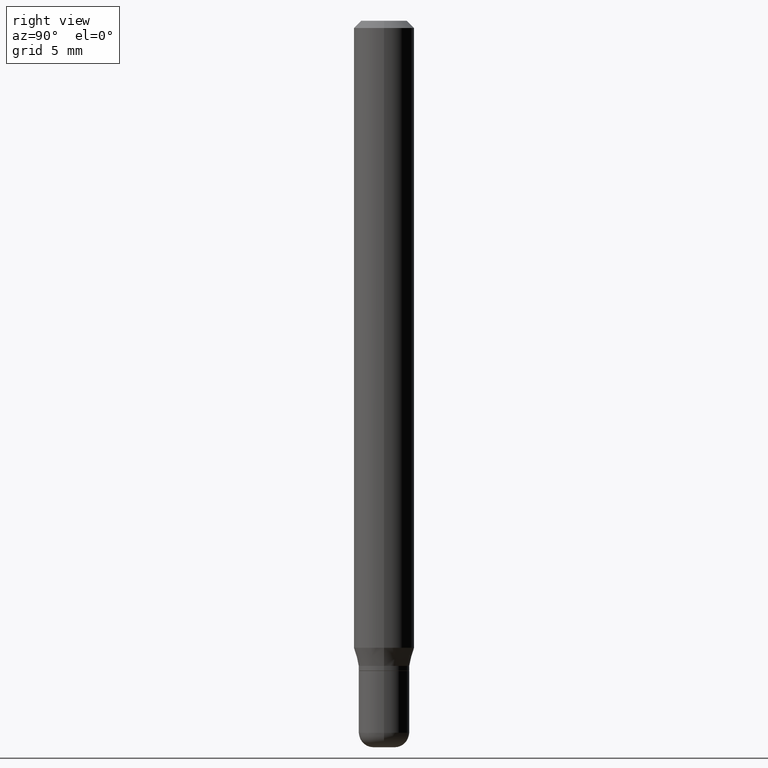
[diagram: clean part render]
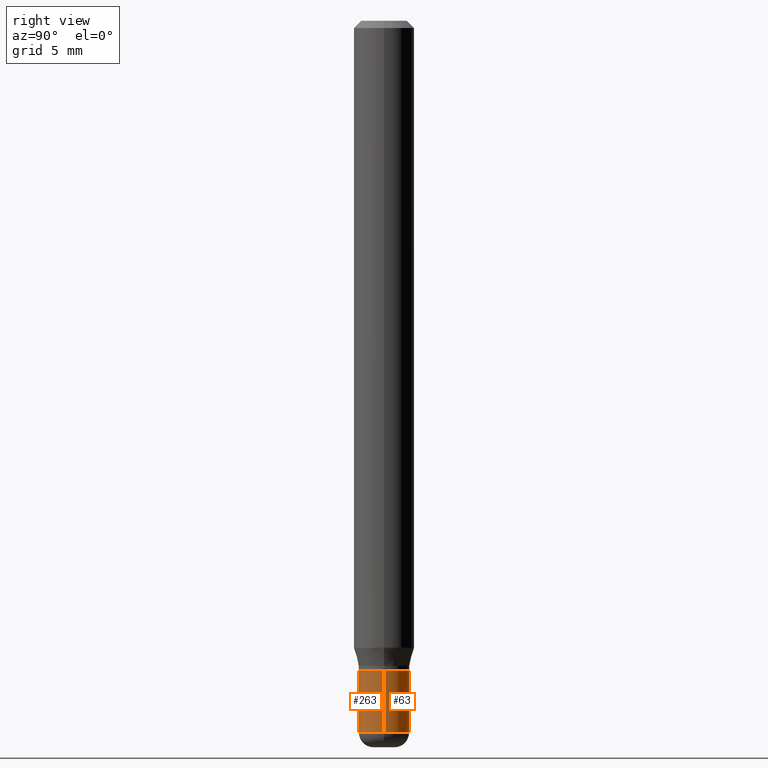
[diagram: same view with one multi-face feature highlighted, each face labeled with its STEP entity id]
A machine part, right view. The highlighted faces form ONE feature: a constant-radius fillet chain: 2 tangent blend faces with common blend radius 1.3335 mm. The faces share edges in the B-rep.
Their STEP definitions:
[1] entity #263 (Cylinder):
#3 = VERTEX_POINT ( 'NONE', #451 ) ;
#45 = EDGE_CURVE ( 'NONE', #3, #133, #436, .T. ) ;
#78 = AXIS2_PLACEMENT_3D ( 'NONE', #101, #333, #320 ) ;
#85 = DIRECTION ( 'NONE',  ( -2.445468806185136877E-29, 3.491481338843145188E-15, 1.000000000000000000 ) ) ;
#93 = ORIENTED_EDGE ( 'NONE', *, *, #406, .T. ) ;
#97 = CARTESIAN_POINT ( 'NONE',  ( 0.05250000000000010908, -5.499083108677954756E-15, -1.470000000000000195 ) ) ;
#101 = CARTESIAN_POINT ( 'NONE',  ( 3.594839145092150820E-29, -5.132477568099424807E-15, -1.470000000000000195 ) ) ;
#131 = DIRECTION ( 'NONE',  ( -2.445468806185136597E-29, 3.491481338843145583E-15, 1.000000000000000000 ) ) ;
#133 = VERTEX_POINT ( 'NONE', #387 ) ;
#135 = CARTESIAN_POINT ( 'NONE',  ( 0.000000000000000000, 0.000000000000000000, 0.000000000000000000 ) ) ;
#159 = DIRECTION ( 'NONE',  ( -2.445468806185136877E-29, 3.491481338843145188E-15, 1.000000000000000000 ) ) ;
#164 = CIRCLE ( 'NONE', #78, 0.05250000000000010908 ) ;
#165 = CYLINDRICAL_SURFACE ( 'NONE', #517, 0.05250000000000005357 ) ;
#170 = CARTESIAN_POINT ( 'NONE',  ( 3.281819137900453057E-29, -4.685567956727500961E-15, -1.342000000000000082 ) ) ;
#172 = VECTOR ( 'NONE', #159, 39.37007874015748143 ) ;
#182 = ORIENTED_EDGE ( 'NONE', *, *, #412, .F. ) ;
#187 = ORIENTED_EDGE ( 'NONE', *, *, #365, .T. ) ;
#230 = AXIS2_PLACEMENT_3D ( 'NONE', #170, #131, #285 ) ;
#241 = FACE_OUTER_BOUND ( 'NONE', #292, .T. ) ;
#263 = ADVANCED_FACE ( 'NONE', ( #241 ), #165, .T. ) ;
#275 = VERTEX_POINT ( 'NONE', #407 ) ;
#277 = VERTEX_POINT ( 'NONE', #97 ) ;
#285 = DIRECTION ( 'NONE',  ( 1.000000000000000000, -6.982962677686268288E-15, 0.000000000000000000 ) ) ;
#292 = EDGE_LOOP ( 'NONE', ( #453, #187, #93, #182 ) ) ;
#320 = DIRECTION ( 'NONE',  ( 1.000000000000000000, -6.982962677686272233E-15, 0.000000000000000000 ) ) ;
#329 = DIRECTION ( 'NONE',  ( -2.445468806185136597E-29, 3.491481338843145583E-15, 1.000000000000000000 ) ) ;
#333 = DIRECTION ( 'NONE',  ( -2.445468806185136597E-29, 3.491481338843145583E-15, 1.000000000000000000 ) ) ;
#342 = CIRCLE ( 'NONE', #230, 0.05249999999999999806 ) ;
#365 = EDGE_CURVE ( 'NONE', #3, #277, #164, .T. ) ;
#368 = CARTESIAN_POINT ( 'NONE',  ( 0.05250000000000005357, -3.666055405785293573E-16, 2.559992807292869164E-30 ) ) ;
#376 = VECTOR ( 'NONE', #85, 39.37007874015748143 ) ;
#387 = CARTESIAN_POINT ( 'NONE',  ( -0.05249999999999999806, -4.535987826139409561E-15, -1.342000000000000082 ) ) ;
#395 = CARTESIAN_POINT ( 'NONE',  ( -0.05250000000000005357, 3.730349362740529782E-16, -2.582440922383828464E-30 ) ) ;
#406 = EDGE_CURVE ( 'NONE', #277, #275, #483, .T. ) ;
#407 = CARTESIAN_POINT ( 'NONE',  ( 0.05249999999999999806, -5.052173497306030121E-15, -1.342000000000000082 ) ) ;
#412 = EDGE_CURVE ( 'NONE', #133, #275, #342, .T. ) ;
#436 = LINE ( 'NONE', #395, #172 ) ;
#448 = DIRECTION ( 'NONE',  ( 1.000000000000000000, -6.982962677686266711E-15, 4.876176775795936353E-29 ) ) ;
#451 = CARTESIAN_POINT ( 'NONE',  ( -0.05250000000000009520, -4.535987826139408772E-15, -1.470000000000000195 ) ) ;
#453 = ORIENTED_EDGE ( 'NONE', *, *, #45, .F. ) ;
#483 = LINE ( 'NONE', #368, #376 ) ;
#517 = AXIS2_PLACEMENT_3D ( 'NONE', #135, #329, #448 ) ;
[2] entity #63 (Cylinder):
#3 = VERTEX_POINT ( 'NONE', #451 ) ;
#11 = EDGE_CURVE ( 'NONE', #277, #3, #293, .T. ) ;
#45 = EDGE_CURVE ( 'NONE', #3, #133, #436, .T. ) ;
#61 = DIRECTION ( 'NONE',  ( 1.000000000000000000, -6.982962677686272233E-15, 0.000000000000000000 ) ) ;
#63 = ADVANCED_FACE ( 'NONE', ( #425 ), #68, .T. ) ;
#64 = DIRECTION ( 'NONE',  ( -2.445468806185136597E-29, 3.491481338843145583E-15, 1.000000000000000000 ) ) ;
#68 = CYLINDRICAL_SURFACE ( 'NONE', #481, 0.05250000000000005357 ) ;
#85 = DIRECTION ( 'NONE',  ( -2.445468806185136877E-29, 3.491481338843145188E-15, 1.000000000000000000 ) ) ;
#96 = DIRECTION ( 'NONE',  ( -2.445468806185136597E-29, 3.491481338843145583E-15, 1.000000000000000000 ) ) ;
#97 = CARTESIAN_POINT ( 'NONE',  ( 0.05250000000000010908, -5.499083108677954756E-15, -1.470000000000000195 ) ) ;
#133 = VERTEX_POINT ( 'NONE', #387 ) ;
#146 = ORIENTED_EDGE ( 'NONE', *, *, #406, .F. ) ;
#159 = DIRECTION ( 'NONE',  ( -2.445468806185136877E-29, 3.491481338843145188E-15, 1.000000000000000000 ) ) ;
#168 = ORIENTED_EDGE ( 'NONE', *, *, #45, .T. ) ;
#172 = VECTOR ( 'NONE', #159, 39.37007874015748143 ) ;
#177 = EDGE_LOOP ( 'NONE', ( #370, #168, #278, #146 ) ) ;
#179 = AXIS2_PLACEMENT_3D ( 'NONE', #423, #64, #228 ) ;
#227 = EDGE_CURVE ( 'NONE', #275, #133, #417, .T. ) ;
#228 = DIRECTION ( 'NONE',  ( 1.000000000000000000, -6.982962677686268288E-15, 0.000000000000000000 ) ) ;
#233 = DIRECTION ( 'NONE',  ( 1.000000000000000000, -6.982962677686266711E-15, 4.876176775795936353E-29 ) ) ;
#236 = AXIS2_PLACEMENT_3D ( 'NONE', #457, #96, #61 ) ;
#275 = VERTEX_POINT ( 'NONE', #407 ) ;
#277 = VERTEX_POINT ( 'NONE', #97 ) ;
#278 = ORIENTED_EDGE ( 'NONE', *, *, #227, .F. ) ;
#293 = CIRCLE ( 'NONE', #236, 0.05250000000000010908 ) ;
#368 = CARTESIAN_POINT ( 'NONE',  ( 0.05250000000000005357, -3.666055405785293573E-16, 2.559992807292869164E-30 ) ) ;
#370 = ORIENTED_EDGE ( 'NONE', *, *, #11, .T. ) ;
#376 = VECTOR ( 'NONE', #85, 39.37007874015748143 ) ;
#387 = CARTESIAN_POINT ( 'NONE',  ( -0.05249999999999999806, -4.535987826139409561E-15, -1.342000000000000082 ) ) ;
#395 = CARTESIAN_POINT ( 'NONE',  ( -0.05250000000000005357, 3.730349362740529782E-16, -2.582440922383828464E-30 ) ) ;
#406 = EDGE_CURVE ( 'NONE', #277, #275, #483, .T. ) ;
#407 = CARTESIAN_POINT ( 'NONE',  ( 0.05249999999999999806, -5.052173497306030121E-15, -1.342000000000000082 ) ) ;
#417 = CIRCLE ( 'NONE', #179, 0.05249999999999999806 ) ;
#423 = CARTESIAN_POINT ( 'NONE',  ( 3.281819137900453057E-29, -4.685567956727500961E-15, -1.342000000000000082 ) ) ;
#425 = FACE_OUTER_BOUND ( 'NONE', #177, .T. ) ;
#431 = DIRECTION ( 'NONE',  ( -2.445468806185136597E-29, 3.491481338843145583E-15, 1.000000000000000000 ) ) ;
#436 = LINE ( 'NONE', #395, #172 ) ;
#451 = CARTESIAN_POINT ( 'NONE',  ( -0.05250000000000009520, -4.535987826139408772E-15, -1.470000000000000195 ) ) ;
#457 = CARTESIAN_POINT ( 'NONE',  ( 3.594839145092150820E-29, -5.132477568099424807E-15, -1.470000000000000195 ) ) ;
#471 = CARTESIAN_POINT ( 'NONE',  ( 0.000000000000000000, 0.000000000000000000, 0.000000000000000000 ) ) ;
#481 = AXIS2_PLACEMENT_3D ( 'NONE', #471, #431, #233 ) ;
#483 = LINE ( 'NONE', #368, #376 ) ;